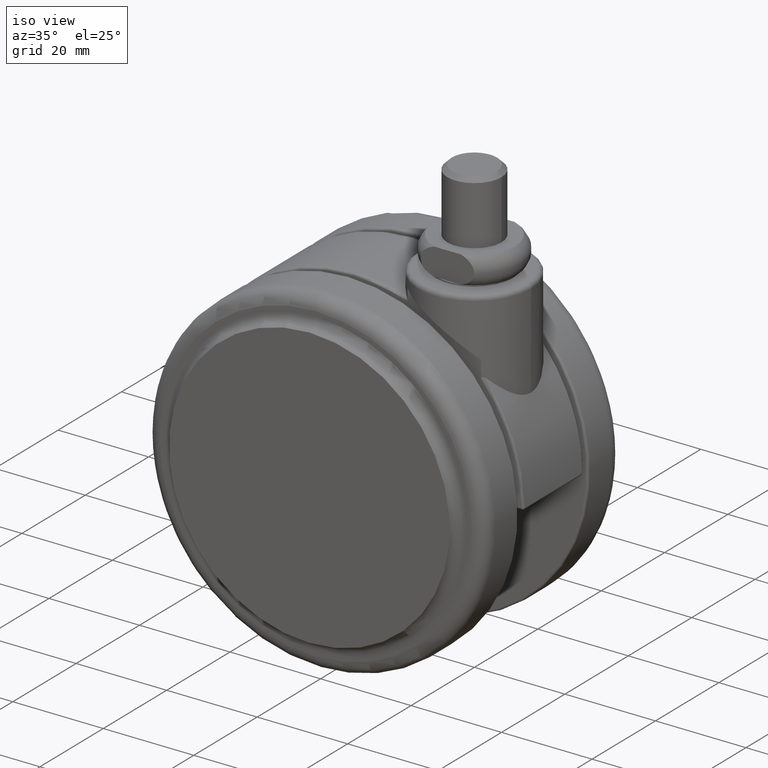
[diagram: clean part render]
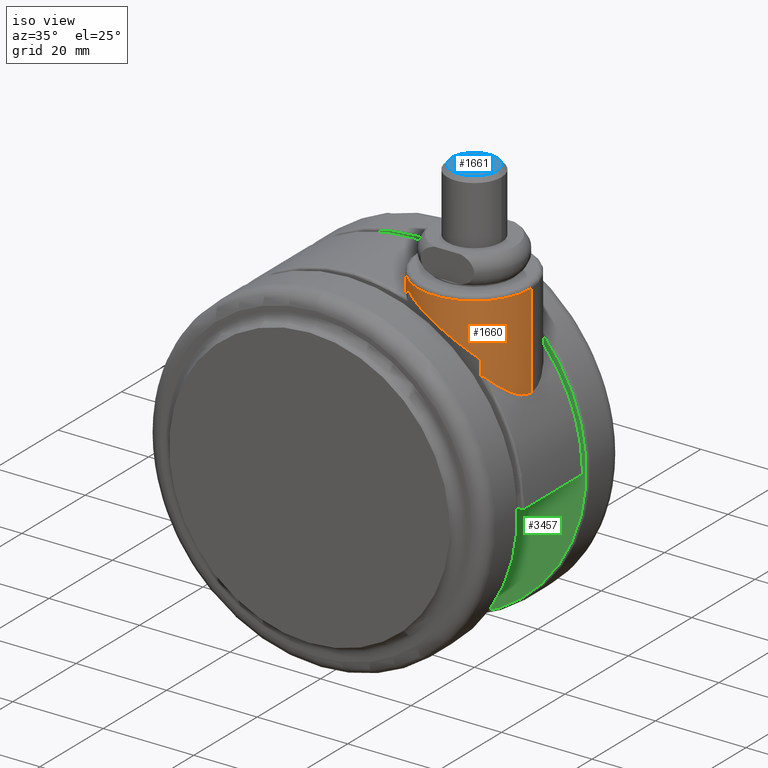
[diagram: same view with three faces highlighted in distinct colors, each labeled with its STEP entity id]
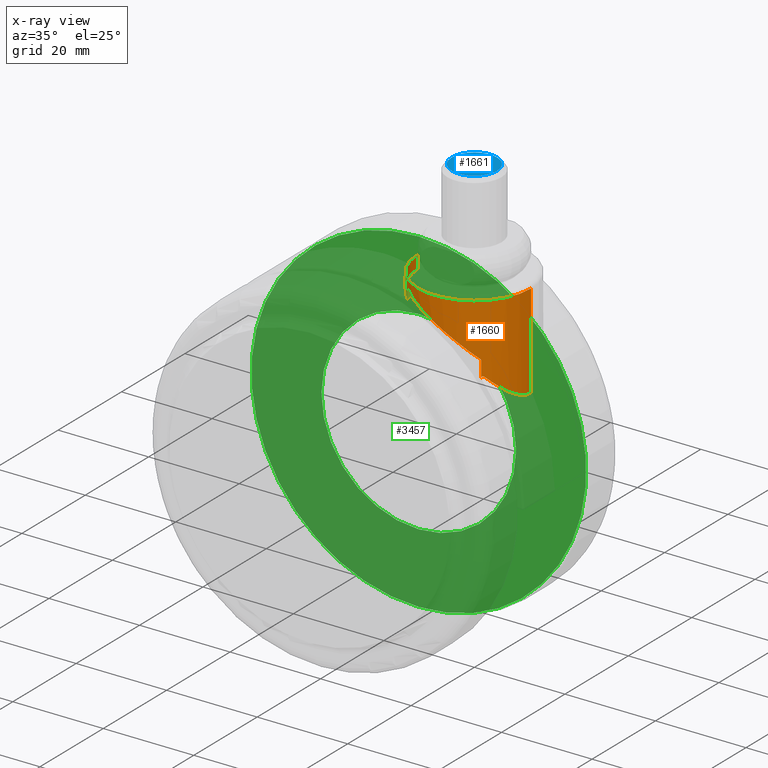
[diagram: x-ray of the same camera — body ghosted, the three highlighted faces saturated]
A machine part, iso view with three faces highlighted in distinct colors.
The next image is the same camera in x-ray (body ghosted, the three faces saturated) — at least one of them is partly hidden behind the body in this view.
Their STEP definitions:

[orange] entity #1660 — the highlighted cylindrical surface (partial cylindrical patch) has radius 12.5 mm, axis along (0, 0, 1).
#95 = VECTOR ( 'NONE', #2074, 1000.000000000000000 ) ;
#108 = ORIENTED_EDGE ( 'NONE', *, *, #1825, .F. ) ;
#119 = CARTESIAN_POINT ( 'NONE',  ( 8.124038404636170400, -9.499999999999840100, -12.76395010434029900 ) ) ;
#169 = CARTESIAN_POINT ( 'NONE',  ( -12.50000000000000000, 2.995251654553703900E-014, -3.757653858252425000 ) ) ;
#189 = LINE ( 'NONE', #209, #1002 ) ;
#202 = EDGE_LOOP ( 'NONE', ( #1408, #108, #738, #1842, #2605, #2745, #1797, #1697, #2699, #1658 ) ) ;
#209 = CARTESIAN_POINT ( 'NONE',  ( 8.124038404636159800, -9.499999999999801000, -1000.000000000000000 ) ) ;
#214 = EDGE_CURVE ( 'NONE', #825, #1895, #2541, .T. ) ;
#231 = CARTESIAN_POINT ( 'NONE',  ( -8.150030115307833600, -9.477833030104895000, -5.276897287367798000 ) ) ;
#300 = CARTESIAN_POINT ( 'NONE',  ( -3.173450168658365800, -12.11599973852328700, -4.753875993226408500 ) ) ;
#305 = CARTESIAN_POINT ( 'NONE',  ( 11.66626554984752900, -4.509446654209954300, -20.41096502430789200 ) ) ;
#335 = CARTESIAN_POINT ( 'NONE',  ( -7.487748397791222900, -10.04413099495712700, -3.028161781090292300 ) ) ;
#389 = CARTESIAN_POINT ( 'NONE',  ( -1.299104133882113400, -12.43806535764902300, -5.704804559784662400 ) ) ;
#536 = CARTESIAN_POINT ( 'NONE',  ( -8.124038404636159800, -9.499999999999801000, -5.457717879889360200 ) ) ;
#555 = DIRECTION ( 'NONE',  ( 0.0000000000000000000, 0.0000000000000000000, 1.000000000000000000 ) ) ;
#556 = CARTESIAN_POINT ( 'NONE',  ( -9.267378490791253800, -8.428721800230761100, -4.563286331331251100 ) ) ;
#601 = CARTESIAN_POINT ( 'NONE',  ( 0.0000000000000000000, 2.842170943040399500E-014, -1000.000000000000000 ) ) ;
#617 = CARTESIAN_POINT ( 'NONE',  ( 3.361460040202078200, -12.04454587488749700, -8.646209436130012800 ) ) ;
#630 = CARTESIAN_POINT ( 'NONE',  ( 3.020950366758438300, -12.13459086270900900, -8.399175345060284000 ) ) ;
#635 = EDGE_CURVE ( 'NONE', #1713, #3340, #2894, .T. ) ;
#672 = VERTEX_POINT ( 'NONE', #2473 ) ;
#696 = CARTESIAN_POINT ( 'NONE',  ( 8.124038404636159800, -9.499999999999801000, -16.45756951108054600 ) ) ;
#703 = EDGE_CURVE ( 'NONE', #825, #3340, #2085, .T. ) ;
#706 = CARTESIAN_POINT ( 'NONE',  ( 1.987225206651577900, -12.36117640328321500, -7.674395283927947500 ) ) ;
#738 = ORIENTED_EDGE ( 'NONE', *, *, #3448, .T. ) ;
#825 = VERTEX_POINT ( 'NONE', #975 ) ;
#848 = CARTESIAN_POINT ( 'NONE',  ( -8.674675786448901200, -8.999999999999809900, -4.751055519666890000 ) ) ;
#867 = CARTESIAN_POINT ( 'NONE',  ( -12.50000000000000000, 2.995251654553703900E-014, -3.757653858252425000 ) ) ;
#875 = DIRECTION ( 'NONE',  ( 1.000000000000000000, 0.0000000000000000000, 0.0000000000000000000 ) ) ;
#887 = CARTESIAN_POINT ( 'NONE',  ( 8.674675786448910100, -8.999999999999799300, -16.33363973325709800 ) ) ;
#888 = CARTESIAN_POINT ( 'NONE',  ( -8.674675786448901200, -8.999999999999809900, -4.751055519666890000 ) ) ;
#896 = CARTESIAN_POINT ( 'NONE',  ( 8.941298948947228100, -8.743014500907511500, -16.65000234050980800 ) ) ;
#932 = CARTESIAN_POINT ( 'NONE',  ( 9.688413340939423100, -7.907281397438835800, -17.58700524540147500 ) ) ;
#956 = CARTESIAN_POINT ( 'NONE',  ( 10.59263897079085100, -6.680459693170797100, -18.79972038324677500 ) ) ;
#975 = CARTESIAN_POINT ( 'NONE',  ( 12.50000000000000000, 2.842170947381347100E-014, -21.79171306613108400 ) ) ;
#991 = CARTESIAN_POINT ( 'NONE',  ( 9.924034544817836000, -7.609807742161496700, -17.89596097549964400 ) ) ;
#1002 = VECTOR ( 'NONE', #2080, 1000.000000000000000 ) ;
#1119 = CARTESIAN_POINT ( 'NONE',  ( -12.50000000000000000, 2.995251792933819000E-014, -1000.000000000000000 ) ) ;
#1124 = CARTESIAN_POINT ( 'NONE',  ( 12.22751789361714000, -2.605645293698246200, -21.32587443194355000 ) ) ;
#1167 = CARTESIAN_POINT ( 'NONE',  ( 12.27365506325060300, -2.379626091649654600, -21.40373010410164100 ) ) ;
#1208 = CARTESIAN_POINT ( 'NONE',  ( 4.024726736485387600, -11.83942877130329800, -9.143433004647100400 ) ) ;
#1214 = CARTESIAN_POINT ( 'NONE',  ( 8.189854250221911200, -9.443351764471460200, -16.17392756993252300 ) ) ;
#1222 = DIRECTION ( 'NONE',  ( 1.000000000000000000, 0.0000000000000000000, 0.0000000000000000000 ) ) ;
#1242 = CARTESIAN_POINT ( 'NONE',  ( 12.35442703065444200, -1.916601599694575800, -21.54090227366469900 ) ) ;
#1261 = CARTESIAN_POINT ( 'NONE',  ( 12.50000000000000000, 2.842170947381347100E-014, -21.79171306613108400 ) ) ;
#1272 = CARTESIAN_POINT ( 'NONE',  ( -6.814978268155875300, -10.50980052477403600, -3.257961425350661700 ) ) ;
#1381 = AXIS2_PLACEMENT_3D ( 'NONE', #3705, #3195, #875 ) ;
#1400 = CARTESIAN_POINT ( 'NONE',  ( 7.607734245417035800, -9.941523665049240700, -12.24042357273332400 ) ) ;
#1408 = ORIENTED_EDGE ( 'NONE', *, *, #1752, .F. ) ;
#1421 = VERTEX_POINT ( 'NONE', #2167 ) ;
#1445 = CARTESIAN_POINT ( 'NONE',  ( -12.49999999999999800, -0.8407722689415021400, -3.757653858252426800 ) ) ;
#1457 = CARTESIAN_POINT ( 'NONE',  ( -10.51517581383509300, -6.771638203603449900, -4.218482085273332200 ) ) ;
#1459 = CARTESIAN_POINT ( 'NONE',  ( 12.38900350066858600, -1.679200893670900900, -21.60012012816156700 ) ) ;
#1462 = CARTESIAN_POINT ( 'NONE',  ( -8.548366821937406700, -9.120416435215192400, -4.802978215086189300 ) ) ;
#1487 = CARTESIAN_POINT ( 'NONE',  ( 8.215657642942655800, -9.420963362113536000, -16.14501854591710700 ) ) ;
#1501 = CARTESIAN_POINT ( 'NONE',  ( -8.674675786448901200, -8.999999999999809900, -4.751055519666890000 ) ) ;
#1525 = CARTESIAN_POINT ( 'NONE',  ( -10.73847770299704000, -6.411853426593876500, -4.161066474243648700 ) ) ;
#1543 = CARTESIAN_POINT ( 'NONE',  ( -12.05401286481520300, -3.335758711177920300, -3.851291589132261400 ) ) ;
#1563 = CARTESIAN_POINT ( 'NONE',  ( 8.275429202838752800, -9.368503225442745800, -16.11100446108149600 ) ) ;
#1579 = CARTESIAN_POINT ( 'NONE',  ( -2.423900522645394700, -12.28606006104457500, -5.115720230095725200 ) ) ;
#1600 = CARTESIAN_POINT ( 'NONE',  ( -11.32877515779916800, -5.299412595533453000, -4.015916222165394300 ) ) ;
#1601 = FACE_OUTER_BOUND ( 'NONE', #202, .T. ) ;
#1611 = CARTESIAN_POINT ( 'NONE',  ( -0.1771562865233793600, -12.50431213807045300, -6.331472465548444000 ) ) ;
#1658 = ORIENTED_EDGE ( 'NONE', *, *, #3700, .T. ) ;
#1660 = ADVANCED_FACE ( 'NONE', ( #1601 ), #3122, .T. ) ;
#1697 = ORIENTED_EDGE ( 'NONE', *, *, #703, .F. ) ;
#1709 = CARTESIAN_POINT ( 'NONE',  ( 8.124038404636170400, -9.499999999999840100, -12.76395010434029900 ) ) ;
#1713 = VERTEX_POINT ( 'NONE', #2428 ) ;
#1724 = CARTESIAN_POINT ( 'NONE',  ( -8.124038404636159800, -9.499999999999801000, -1000.000000000000000 ) ) ;
#1752 = EDGE_CURVE ( 'NONE', #3393, #672, #2927, .T. ) ;
#1776 = CARTESIAN_POINT ( 'NONE',  ( -8.372047027163571200, -9.282431855958735800, -4.935578417457512600 ) ) ;
#1785 = CARTESIAN_POINT ( 'NONE',  ( -12.41604507323763200, -1.677237000265646300, -3.774477651932344200 ) ) ;
#1797 = ORIENTED_EDGE ( 'NONE', *, *, #635, .T. ) ;
#1810 = CARTESIAN_POINT ( 'NONE',  ( 12.07343163135560400, -3.269338401600459000, -21.06845382063274000 ) ) ;
#1825 = EDGE_CURVE ( 'NONE', #2788, #3393, #1922, .T. ) ;
#1842 = ORIENTED_EDGE ( 'NONE', *, *, #3375, .T. ) ;
#1843 = EDGE_CURVE ( 'NONE', #2980, #1713, #189, .T. ) ;
#1847 = CARTESIAN_POINT ( 'NONE',  ( 8.308838511763417100, -9.338899992715939300, -16.10563055098506900 ) ) ;
#1854 = DIRECTION ( 'NONE',  ( 0.0000000000000000000, 0.0000000000000000000, 1.000000000000000000 ) ) ;
#1862 = CARTESIAN_POINT ( 'NONE',  ( -4.667873195039816500, -11.60264225398857700, -4.094880288889951800 ) ) ;
#1895 = VERTEX_POINT ( 'NONE', #2672 ) ;
#1922 = B_SPLINE_CURVE_WITH_KNOTS ( 'NONE', 3,
 ( #1501, #556, #3639, #1457, #1525, #2038, #1600, #2721, #2373, #1543, #3116, #1785, #1445, #867 ),
 .UNSPECIFIED., .F., .F.,
 ( 4, 2, 2, 2, 2, 2, 4 ),
 ( 0.0007578292614578130900, 0.003276614447077814200, 0.004536007039887815200, 0.005795399632697815700, 0.007054792225507816200, 0.008314184818317818500, 0.01083297000393782300 ),
 .UNSPECIFIED. ) ;
#1936 = CARTESIAN_POINT ( 'NONE',  ( -5.400915275747120600, -11.28009138363753500, -3.794774503380055300 ) ) ;
#2038 = CARTESIAN_POINT ( 'NONE',  ( -11.14504601772913600, -5.675801001144079400, -4.059861759056297500 ) ) ;
#2066 = CARTESIAN_POINT ( 'NONE',  ( 9.197291858723501100, -8.473504270880711800, -16.96438096324535000 ) ) ;
#2074 = DIRECTION ( 'NONE',  ( 0.0000000000000000000, 0.0000000000000000000, 1.000000000000000000 ) ) ;
#2080 = DIRECTION ( 'NONE',  ( -0.0000000000000000000, -0.0000000000000000000, -1.000000000000000000 ) ) ;
#2085 = B_SPLINE_CURVE_WITH_KNOTS ( 'NONE', 3,
 ( #1261, #2714, #3376, #1459, #1242, #1167, #1124, #1810, #2751, #305, #2404, #2678, #956, #991, #932, #2066, #896, #887 ),
 .UNSPECIFIED., .F., .F.,
 ( 4, 2, 2, 2, 2, 2, 2, 2, 4 ),
 ( 0.01255540025211308200, 0.01400034690380283300, 0.01472282022964770800, 0.01544529355549258500, 0.01689024020718233500, 0.01833518685887208800, 0.02122508016225159400, 0.02267002681394134100, 0.02411497346563109100 ),
 .UNSPECIFIED. ) ;
#2086 = CARTESIAN_POINT ( 'NONE',  ( -8.222669824025700800, -9.414882409888566200, -5.121079826634430200 ) ) ;
#2088 = B_SPLINE_CURVE_WITH_KNOTS ( 'NONE', 3,
 ( #848, #3270, #1462, #3578, #1776, #3890, #2086, #231, #2392, #536 ),
 .UNSPECIFIED., .F., .F.,
 ( 4, 2, 2, 2, 4 ),
 ( 6.774311733017761700E-018, 0.0002716255053387309900, 0.0005432510106774551400, 0.0008148765160161794100, 0.001086502021354903600 ),
 .UNSPECIFIED. ) ;
#2134 = CARTESIAN_POINT ( 'NONE',  ( 12.50000000000000000, 2.842170943040399500E-014, -1000.000000000000000 ) ) ;
#2151 = CARTESIAN_POINT ( 'NONE',  ( 1.279961525957361600, -12.45552430196960900, -7.211317381873638700 ) ) ;
#2156 = EDGE_CURVE ( 'NONE', #3826, #2980, #2211, .T. ) ;
#2167 = CARTESIAN_POINT ( 'NONE',  ( -8.124038404636159800, -9.499999999999801000, -5.457717879889360200 ) ) ;
#2186 = CARTESIAN_POINT ( 'NONE',  ( 8.404958399348656100, -9.252787485902340200, -16.11289066647271200 ) ) ;
#2211 = B_SPLINE_CURVE_WITH_KNOTS ( 'NONE', 3,
 ( #2542, #335, #1272, #3371, #1936, #1862, #3698, #300, #1579, #389, #2851, #1611, #2835, #2151, #706, #630, #617, #1208, #3626, #3111, #3824, #3212, #1400, #1709 ),
 .UNSPECIFIED., .F., .F.,
 ( 4, 2, 2, 2, 2, 2, 2, 2, 2, 2, 2, 4 ),
 ( 3.689092489499296200E-017, 0.002543590775174159800, 0.003815386162761222100, 0.005087181550348284000, 0.007630772325522406000, 0.008902567713109467400, 0.01017436310069653000, 0.01271795387587065600, 0.01398974926345771700, 0.01526154465104477700, 0.01780513542621890000, 0.02034872620139302500 ),
 .UNSPECIFIED. ) ;
#2251 = VECTOR ( 'NONE', #3836, 1000.000000000000000 ) ;
#2373 = CARTESIAN_POINT ( 'NONE',  ( -11.80282795274265500, -4.137603731906472700, -3.906654837730500200 ) ) ;
#2392 = CARTESIAN_POINT ( 'NONE',  ( -8.124038404636147300, -9.499999999999809900, -5.364902886617508100 ) ) ;
#2404 = CARTESIAN_POINT ( 'NONE',  ( 11.50651783622628900, -4.900693350583635400, -20.16068890393995300 ) ) ;
#2428 = CARTESIAN_POINT ( 'NONE',  ( 8.124038404636159800, -9.499999999999801000, -16.45756951108054600 ) ) ;
#2473 = CARTESIAN_POINT ( 'NONE',  ( -12.50000000000000000, 2.995251792933819000E-014, -1.000000000000000000 ) ) ;
#2541 = LINE ( 'NONE', #2134, #95 ) ;
#2542 = CARTESIAN_POINT ( 'NONE',  ( -8.124038404636159800, -9.499999999999840100, -2.827575918379870300 ) ) ;
#2605 = ORIENTED_EDGE ( 'NONE', *, *, #2156, .T. ) ;
#2607 = CARTESIAN_POINT ( 'NONE',  ( 8.674675786448910100, -8.999999999999799300, -16.33363973325709800 ) ) ;
#2644 = VECTOR ( 'NONE', #1854, 1000.000000000000000 ) ;
#2672 = CARTESIAN_POINT ( 'NONE',  ( 12.50000000000000000, 2.842170943040399500E-014, -1.000000000000000000 ) ) ;
#2678 = CARTESIAN_POINT ( 'NONE',  ( 10.98994516704020300, -6.011497097466171400, -19.37498481300060500 ) ) ;
#2699 = ORIENTED_EDGE ( 'NONE', *, *, #214, .T. ) ;
#2714 = CARTESIAN_POINT ( 'NONE',  ( 12.50000000000000500, -0.4865225008004295800, -21.79171306613108100 ) ) ;
#2721 = CARTESIAN_POINT ( 'NONE',  ( -11.65766593866017000, -4.530314039475490200, -3.939311114517211700 ) ) ;
#2745 = ORIENTED_EDGE ( 'NONE', *, *, #1843, .T. ) ;
#2751 = CARTESIAN_POINT ( 'NONE',  ( 11.94991352482712300, -3.692753411193124600, -20.86521642889563900 ) ) ;
#2788 = VERTEX_POINT ( 'NONE', #888 ) ;
#2817 = CIRCLE ( 'NONE', #1381, 12.50000000000000000 ) ;
#2835 = CARTESIAN_POINT ( 'NONE',  ( 0.1906783963284923400, -12.50382895497994100, -6.547573074297563500 ) ) ;
#2846 = CARTESIAN_POINT ( 'NONE',  ( -8.124038404636159800, -9.499999999999840100, -2.827575918379870300 ) ) ;
#2851 = CARTESIAN_POINT ( 'NONE',  ( -0.9226413412982419300, -12.47148504996411100, -5.909715332643596500 ) ) ;
#2894 = B_SPLINE_CURVE_WITH_KNOTS ( 'NONE', 3,
 ( #696, #3878, #3703, #3633, #3359, #1214, #1487, #1563, #1847, #2186, #3294, #3267, #3132, #3120 ),
 .UNSPECIFIED., .F., .F.,
 ( 4, 2, 2, 2, 2, 2, 4 ),
 ( 5.241621348676300800E-017, 0.0001292555604884613000, 0.0002585111209768701800, 0.0003877666814652790600, 0.0005170222419536878900, 0.0007755333629305012100, 0.001034044483907314600 ),
 .UNSPECIFIED. ) ;
#2927 = LINE ( 'NONE', #1119, #2644 ) ;
#2980 = VERTEX_POINT ( 'NONE', #119 ) ;
#3111 = CARTESIAN_POINT ( 'NONE',  ( 5.298514036514999900, -11.34203044914669600, -10.15378947833515400 ) ) ;
#3116 = CARTESIAN_POINT ( 'NONE',  ( -12.16031509086136700, -2.925245578562813500, -3.828527006093505500 ) ) ;
#3120 = CARTESIAN_POINT ( 'NONE',  ( 8.674675786448910100, -8.999999999999799300, -16.33363973325709800 ) ) ;
#3122 = CYLINDRICAL_SURFACE ( 'NONE', #3142, 12.50000000000000000 ) ;
#3132 = CARTESIAN_POINT ( 'NONE',  ( 8.627394030862156200, -9.045572655591939800, -16.27753740766484100 ) ) ;
#3142 = AXIS2_PLACEMENT_3D ( 'NONE', #601, #555, #1222 ) ;
#3195 = DIRECTION ( 'NONE',  ( -0.0000000000000000000, -0.0000000000000000000, -1.000000000000000000 ) ) ;
#3212 = CARTESIAN_POINT ( 'NONE',  ( 7.057369772667794200, -10.33921272159584600, -11.71191063927629400 ) ) ;
#3267 = CARTESIAN_POINT ( 'NONE',  ( 8.576346888233755900, -9.094063456403951300, -16.22659270216846700 ) ) ;
#3270 = CARTESIAN_POINT ( 'NONE',  ( -8.610195552788624700, -9.062149457959504800, -4.771482963390996100 ) ) ;
#3294 = CARTESIAN_POINT ( 'NONE',  ( 8.465714560075865000, -9.197140484071024200, -16.14518243105222300 ) ) ;
#3340 = VERTEX_POINT ( 'NONE', #2607 ) ;
#3359 = CARTESIAN_POINT ( 'NONE',  ( 8.152621077802821900, -9.475514484669915300, -16.24544467256851400 ) ) ;
#3371 = CARTESIAN_POINT ( 'NONE',  ( -5.760186106078784000, -11.10102315058530600, -3.654121545514808400 ) ) ;
#3375 = EDGE_CURVE ( 'NONE', #1421, #3826, #3761, .T. ) ;
#3376 = CARTESIAN_POINT ( 'NONE',  ( 12.47170636205235200, -0.9669715312654131300, -21.74232653867441600 ) ) ;
#3393 = VERTEX_POINT ( 'NONE', #169 ) ;
#3448 = EDGE_CURVE ( 'NONE', #2788, #1421, #2088, .T. ) ;
#3578 = CARTESIAN_POINT ( 'NONE',  ( -8.429359695629514700, -9.230518208412803500, -4.884758029442099100 ) ) ;
#3626 = CARTESIAN_POINT ( 'NONE',  ( 4.348636287935780900, -11.72415621106171300, -9.394401833624259600 ) ) ;
#3633 = CARTESIAN_POINT ( 'NONE',  ( 8.140952458267886300, -9.485514285894989700, -16.28665402571820700 ) ) ;
#3639 = CARTESIAN_POINT ( 'NONE',  ( -9.802904443546696100, -7.800582663888066600, -4.409683149507409400 ) ) ;
#3698 = CARTESIAN_POINT ( 'NONE',  ( -4.293371977891619700, -11.74612770101994700, -4.254739946322990500 ) ) ;
#3700 = EDGE_CURVE ( 'NONE', #1895, #672, #2817, .T. ) ;
#3703 = CARTESIAN_POINT ( 'NONE',  ( 8.126690332502315400, -9.497736174231695500, -16.37123180583945400 ) ) ;
#3705 = CARTESIAN_POINT ( 'NONE',  ( 0.0000000000000000000, 2.842170943040399500E-014, -1.000000000000000000 ) ) ;
#3761 = LINE ( 'NONE', #1724, #2251 ) ;
#3824 = CARTESIAN_POINT ( 'NONE',  ( 5.902730154748659300, -11.03918314599388100, -10.66874259126568700 ) ) ;
#3826 = VERTEX_POINT ( 'NONE', #2846 ) ;
#3836 = DIRECTION ( 'NONE',  ( 0.0000000000000000000, 0.0000000000000000000, 1.000000000000000000 ) ) ;
#3878 = CARTESIAN_POINT ( 'NONE',  ( 8.124038404636158000, -9.499999999999804600, -16.41420006455912900 ) ) ;
#3890 = CARTESIAN_POINT ( 'NONE',  ( -8.269589437866647700, -9.373825425869645400, -5.052959941858677700 ) ) ;

[blue] entity #1661 — the highlighted planar face has unit normal (0, 0, 1).
#60 = ORIENTED_EDGE ( 'NONE', *, *, #1126, .T. ) ;
#444 = AXIS2_PLACEMENT_3D ( 'NONE', #2855, #2828, #2652 ) ;
#449 = CARTESIAN_POINT ( 'NONE',  ( 5.000000000000000000, 2.909526516993503800E-014, 20.49999999999965200 ) ) ;
#781 = ORIENTED_EDGE ( 'NONE', *, *, #1061, .T. ) ;
#811 = EDGE_LOOP ( 'NONE', ( #781, #60 ) ) ;
#1061 = EDGE_CURVE ( 'NONE', #1106, #3263, #2995, .T. ) ;
#1106 = VERTEX_POINT ( 'NONE', #3453 ) ;
#1126 = EDGE_CURVE ( 'NONE', #3263, #1106, #2101, .T. ) ;
#1661 = ADVANCED_FACE ( 'NONE', ( #2505 ), #3406, .T. ) ;
#2101 = CIRCLE ( 'NONE', #444, 5.000000000000000000 ) ;
#2152 = DIRECTION ( 'NONE',  ( 1.000000000000000000, 0.0000000000000000000, 0.0000000000000000000 ) ) ;
#2505 = FACE_OUTER_BOUND ( 'NONE', #811, .T. ) ;
#2652 = DIRECTION ( 'NONE',  ( 1.000000000000000000, 0.0000000000000000000, 0.0000000000000000000 ) ) ;
#2689 = DIRECTION ( 'NONE',  ( 0.0000000000000000000, 0.0000000000000000000, 1.000000000000000000 ) ) ;
#2782 = AXIS2_PLACEMENT_3D ( 'NONE', #3841, #3831, #3522 ) ;
#2828 = DIRECTION ( 'NONE',  ( 0.0000000000000000000, 0.0000000000000000000, 1.000000000000000000 ) ) ;
#2855 = CARTESIAN_POINT ( 'NONE',  ( 0.0000000000000000000, 2.842170943040399500E-014, 20.49999999999965200 ) ) ;
#2995 = CIRCLE ( 'NONE', #2782, 5.000000000000000000 ) ;
#3263 = VERTEX_POINT ( 'NONE', #449 ) ;
#3329 = AXIS2_PLACEMENT_3D ( 'NONE', #3391, #2689, #2152 ) ;
#3391 = CARTESIAN_POINT ( 'NONE',  ( 0.0000000000000000000, 0.0000000000000000000, 20.49999999999965200 ) ) ;
#3406 = PLANE ( 'NONE',  #3329 ) ;
#3453 = CARTESIAN_POINT ( 'NONE',  ( -5.000000000000000000, 2.842170943040399500E-014, 20.49999999999965200 ) ) ;
#3522 = DIRECTION ( 'NONE',  ( 1.000000000000000000, 0.0000000000000000000, 0.0000000000000000000 ) ) ;
#3831 = DIRECTION ( 'NONE',  ( 0.0000000000000000000, 0.0000000000000000000, 1.000000000000000000 ) ) ;
#3841 = CARTESIAN_POINT ( 'NONE',  ( 0.0000000000000000000, 2.842170943040399500E-014, 20.49999999999965200 ) ) ;

[green] entity #3457 — the highlighted planar face has unit normal (-0, -1, 0).
#20 = DIRECTION ( 'NONE',  ( 0.0000000000000000000, 0.0000000000000000000, -1.000000000000000000 ) ) ;
#30 = CARTESIAN_POINT ( 'NONE',  ( -20.00000000000000000, 11.00000000000000000, -40.50000000000000000 ) ) ;
#76 = EDGE_LOOP ( 'NONE', ( #2351, #2454 ) ) ;
#183 = DIRECTION ( 'NONE',  ( 0.0000000000000000000, 0.0000000000000000000, -1.000000000000000000 ) ) ;
#461 = CIRCLE ( 'NONE', #1529, 37.00000000000000000 ) ;
#521 = VERTEX_POINT ( 'NONE', #685 ) ;
#621 = AXIS2_PLACEMENT_3D ( 'NONE', #1753, #3862, #2052 ) ;
#685 = CARTESIAN_POINT ( 'NONE',  ( -19.99999999999998200, 11.00000000000000000, -19.00000000000000400 ) ) ;
#724 = ORIENTED_EDGE ( 'NONE', *, *, #905, .F. ) ;
#807 = CIRCLE ( 'NONE', #2249, 21.50000000000000000 ) ;
#826 = VERTEX_POINT ( 'NONE', #998 ) ;
#859 = CARTESIAN_POINT ( 'NONE',  ( -57.00000000000000000, 11.00000000000000000, -40.50000000000000000 ) ) ;
#905 = EDGE_CURVE ( 'NONE', #521, #3175, #807, .T. ) ;
#998 = CARTESIAN_POINT ( 'NONE',  ( -20.00000000000000000, 11.00000000000000000, -77.50000000000000000 ) ) ;
#1035 = CARTESIAN_POINT ( 'NONE',  ( -20.00000000000000000, 11.00000000000000000, -40.50000000000000000 ) ) ;
#1130 = FACE_BOUND ( 'NONE', #1452, .T. ) ;
#1158 = DIRECTION ( 'NONE',  ( -1.582413479254075000E-015, -1.000000000000000000, 0.0000000000000000000 ) ) ;
#1367 = DIRECTION ( 'NONE',  ( 0.0000000000000000000, 0.0000000000000000000, -1.000000000000000000 ) ) ;
#1452 = EDGE_LOOP ( 'NONE', ( #3855, #724 ) ) ;
#1529 = AXIS2_PLACEMENT_3D ( 'NONE', #1035, #3178, #1367 ) ;
#1593 = CIRCLE ( 'NONE', #3388, 21.50000000000000000 ) ;
#1633 = CARTESIAN_POINT ( 'NONE',  ( -20.00000000000000000, 11.00000000000000000, -62.00000000000000000 ) ) ;
#1753 = CARTESIAN_POINT ( 'NONE',  ( -20.00000000000000000, 11.00000000000000000, -40.50000000000000000 ) ) ;
#2034 = DIRECTION ( 'NONE',  ( -1.582413479254075000E-015, -1.000000000000000000, 0.0000000000000000000 ) ) ;
#2052 = DIRECTION ( 'NONE',  ( 0.0000000000000000000, 0.0000000000000000000, -1.000000000000000000 ) ) ;
#2184 = EDGE_CURVE ( 'NONE', #3175, #521, #1593, .T. ) ;
#2224 = VERTEX_POINT ( 'NONE', #2350 ) ;
#2249 = AXIS2_PLACEMENT_3D ( 'NONE', #30, #3444, #20 ) ;
#2282 = AXIS2_PLACEMENT_3D ( 'NONE', #859, #1158, #3281 ) ;
#2350 = CARTESIAN_POINT ( 'NONE',  ( -20.00000000000000400, 11.00000000000000000, -3.500000000000003100 ) ) ;
#2351 = ORIENTED_EDGE ( 'NONE', *, *, #3417, .T. ) ;
#2454 = ORIENTED_EDGE ( 'NONE', *, *, #3217, .T. ) ;
#2695 = PLANE ( 'NONE',  #2282 ) ;
#2869 = CIRCLE ( 'NONE', #621, 37.00000000000000000 ) ;
#3175 = VERTEX_POINT ( 'NONE', #1633 ) ;
#3178 = DIRECTION ( 'NONE',  ( -1.582413479254075000E-015, -1.000000000000000000, 0.0000000000000000000 ) ) ;
#3217 = EDGE_CURVE ( 'NONE', #2224, #826, #461, .T. ) ;
#3281 = DIRECTION ( 'NONE',  ( 0.0000000000000000000, 0.0000000000000000000, 1.000000000000000000 ) ) ;
#3388 = AXIS2_PLACEMENT_3D ( 'NONE', #3837, #2034, #183 ) ;
#3417 = EDGE_CURVE ( 'NONE', #826, #2224, #2869, .T. ) ;
#3444 = DIRECTION ( 'NONE',  ( -1.582413479254075000E-015, -1.000000000000000000, 0.0000000000000000000 ) ) ;
#3457 = ADVANCED_FACE ( 'NONE', ( #1130, #3656 ), #2695, .T. ) ;
#3656 = FACE_OUTER_BOUND ( 'NONE', #76, .T. ) ;
#3837 = CARTESIAN_POINT ( 'NONE',  ( -20.00000000000000000, 11.00000000000000000, -40.50000000000000000 ) ) ;
#3855 = ORIENTED_EDGE ( 'NONE', *, *, #2184, .F. ) ;
#3862 = DIRECTION ( 'NONE',  ( -1.582413479254075000E-015, -1.000000000000000000, 0.0000000000000000000 ) ) ;